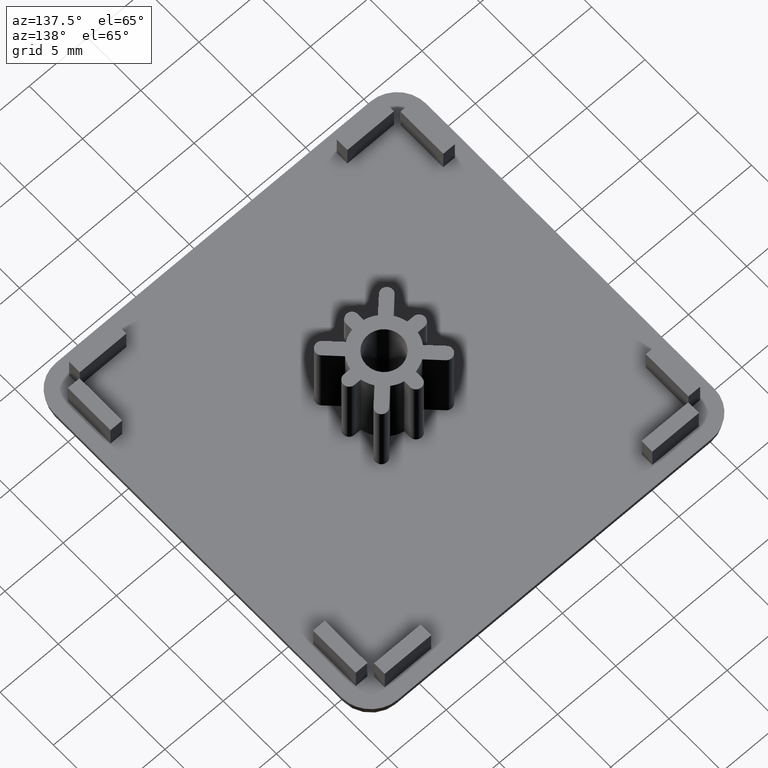
[diagram: clean part render]
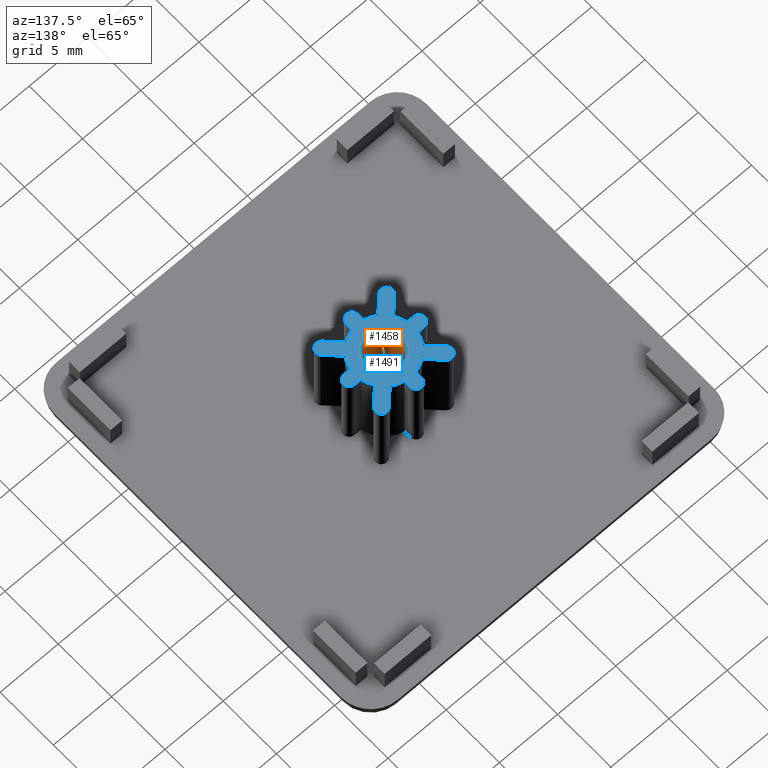
[diagram: same view with the hole feature highlighted: cylindrical wall and planar end face, labeled with their STEP entity ids]
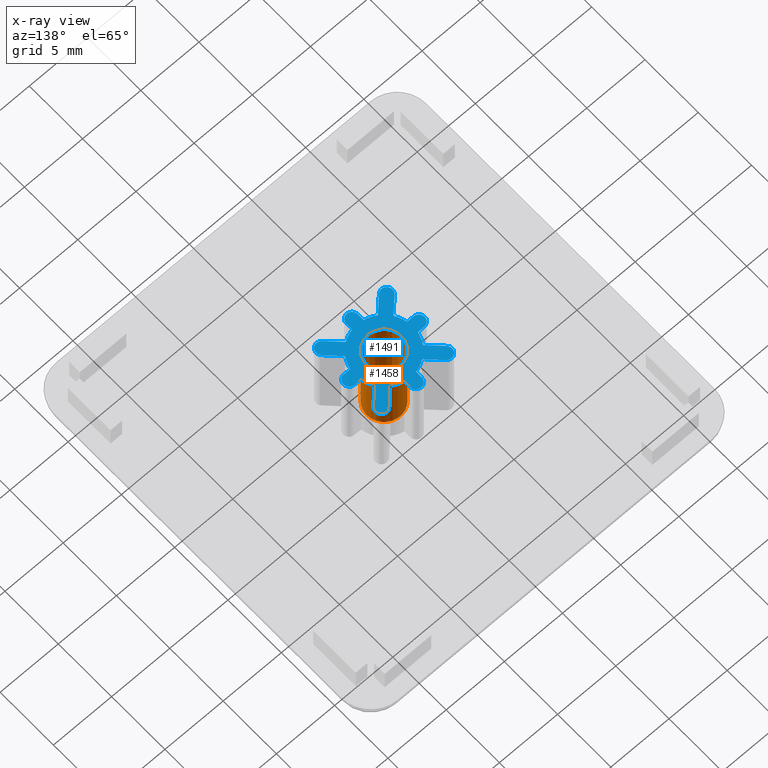
[diagram: x-ray of the same camera — body ghosted, the hole faces saturated]
A machine part, auxiliary view. The highlighted faces form one hole feature of diameter 3 mm: the cylindrical wall (entity #1458, orange) and its adjacent planar end face (entity #1491, blue) — they share a circular edge in the B-rep.
The next image is the same camera in x-ray (body ghosted, the hole faces saturated) — the bore reads through the body.
Wall:
#415=FACE_BOUND('',#512,.T.);
#426=FACE_OUTER_BOUND('',#511,.T.);
#511=EDGE_LOOP('',(#1009));
#512=EDGE_LOOP('',(#1010));
#607=CIRCLE('',#1546,1.5);
#608=CIRCLE('',#1547,1.5);
#653=VERTEX_POINT('',#2110);
#654=VERTEX_POINT('',#2112);
#795=EDGE_CURVE('',#653,#653,#607,.T.);
#796=EDGE_CURVE('',#654,#654,#608,.T.);
#1009=ORIENTED_EDGE('',*,*,#795,.F.);
#1010=ORIENTED_EDGE('',*,*,#796,.F.);
#1437=CYLINDRICAL_SURFACE('',#1545,1.5);
#1458=ADVANCED_FACE('',(#426,#415),#1437,.F.);
#1545=AXIS2_PLACEMENT_3D('',#2109,#1678,#1679);
#1546=AXIS2_PLACEMENT_3D('',#2111,#1680,#1681);
#1547=AXIS2_PLACEMENT_3D('',#2113,#1682,#1683);
#1678=DIRECTION('center_axis',(0.,0.,1.));
#1679=DIRECTION('ref_axis',(-1.,0.,0.));
#1680=DIRECTION('center_axis',(0.,0.,-1.));
#1681=DIRECTION('ref_axis',(-1.,0.,0.));
#1682=DIRECTION('center_axis',(0.,0.,1.));
#1683=DIRECTION('ref_axis',(-1.,0.,0.));
#2109=CARTESIAN_POINT('Origin',(-10.6990287283671,2.50485419712414,2.5));
#2110=CARTESIAN_POINT('',(-9.19902872836705,2.50485419712414,10.));
#2111=CARTESIAN_POINT('Origin',(-10.6990287283671,2.50485419712414,10.));
#2112=CARTESIAN_POINT('',(-9.19902872836705,2.50485419712414,2.5));
#2113=CARTESIAN_POINT('Origin',(-10.6990287283671,2.50485419712414,2.5));
End face:
#35=PLANE('',#1612);
#81=LINE('',#2125,#249);
#85=LINE('',#2137,#253);
#89=LINE('',#2149,#257);
#93=LINE('',#2161,#261);
#97=LINE('',#2173,#265);
#101=LINE('',#2185,#269);
#105=LINE('',#2197,#273);
#109=LINE('',#2209,#277);
#113=LINE('',#2221,#281);
#117=LINE('',#2233,#285);
#121=LINE('',#2245,#289);
#125=LINE('',#2257,#293);
#129=LINE('',#2269,#297);
#133=LINE('',#2281,#301);
#137=LINE('',#2293,#305);
#141=LINE('',#2304,#309);
#249=VECTOR('',#1694,1.50025772552267);
#253=VECTOR('',#1706,1.50025772552267);
#257=VECTOR('',#1718,0.550510257216825);
#261=VECTOR('',#1730,0.550510257216826);
#265=VECTOR('',#1742,1.50025772552267);
#269=VECTOR('',#1754,1.50025772552269);
#273=VECTOR('',#1766,0.55051025721682);
#277=VECTOR('',#1778,0.550510257216824);
#281=VECTOR('',#1790,1.50025772552266);
#285=VECTOR('',#1802,1.50025772552267);
#289=VECTOR('',#1814,0.550510257216821);
#293=VECTOR('',#1826,0.550510257216825);
#297=VECTOR('',#1838,1.50025772552262);
#301=VECTOR('',#1850,1.50025772552262);
#305=VECTOR('',#1862,0.55051025721682);
#309=VECTOR('',#1874,0.550510257216824);
#416=FACE_BOUND('',#546,.T.);
#459=FACE_OUTER_BOUND('',#545,.T.);
#545=EDGE_LOOP('',(#1139,#1140,#1141,#1142,#1143,#1144,#1145,#1146,#1147,
#1148,#1149,#1150,#1151,#1152,#1153,#1154,#1155,#1156,#1157,#1158,#1159,
#1160,#1161,#1162,#1163,#1164,#1165,#1166,#1167,#1168,#1169,#1170));
#546=EDGE_LOOP('',(#1171));
#607=CIRCLE('',#1546,1.5);
#609=CIRCLE('',#1549,2.5);
#611=CIRCLE('',#1553,0.499999999999998);
#613=CIRCLE('',#1557,2.5);
#615=CIRCLE('',#1561,0.500000000000001);
#617=CIRCLE('',#1565,2.5);
#619=CIRCLE('',#1569,0.499999999999997);
#621=CIRCLE('',#1573,2.5);
#623=CIRCLE('',#1577,0.500000000000003);
#625=CIRCLE('',#1581,2.5);
#627=CIRCLE('',#1585,0.499999999999998);
#629=CIRCLE('',#1589,2.5);
#631=CIRCLE('',#1593,0.499999999999999);
#633=CIRCLE('',#1597,2.5);
#635=CIRCLE('',#1601,0.499999999999994);
#637=CIRCLE('',#1605,2.5);
#639=CIRCLE('',#1609,0.500000000000002);
#653=VERTEX_POINT('',#2110);
#655=VERTEX_POINT('',#2115);
#656=VERTEX_POINT('',#2116);
#659=VERTEX_POINT('',#2124);
#661=VERTEX_POINT('',#2130);
#663=VERTEX_POINT('',#2136);
#665=VERTEX_POINT('',#2142);
#667=VERTEX_POINT('',#2148);
#669=VERTEX_POINT('',#2154);
#671=VERTEX_POINT('',#2160);
#673=VERTEX_POINT('',#2166);
#675=VERTEX_POINT('',#2172);
#677=VERTEX_POINT('',#2178);
#679=VERTEX_POINT('',#2184);
#681=VERTEX_POINT('',#2190);
#683=VERTEX_POINT('',#2196);
#685=VERTEX_POINT('',#2202);
#687=VERTEX_POINT('',#2208);
#689=VERTEX_POINT('',#2214);
#691=VERTEX_POINT('',#2220);
#693=VERTEX_POINT('',#2226);
#695=VERTEX_POINT('',#2232);
#697=VERTEX_POINT('',#2238);
#699=VERTEX_POINT('',#2244);
#701=VERTEX_POINT('',#2250);
#703=VERTEX_POINT('',#2256);
#705=VERTEX_POINT('',#2262);
#707=VERTEX_POINT('',#2268);
#709=VERTEX_POINT('',#2274);
#711=VERTEX_POINT('',#2280);
#713=VERTEX_POINT('',#2286);
#715=VERTEX_POINT('',#2292);
#717=VERTEX_POINT('',#2298);
#795=EDGE_CURVE('',#653,#653,#607,.T.);
#797=EDGE_CURVE('',#655,#656,#609,.T.);
#801=EDGE_CURVE('',#656,#659,#81,.T.);
#804=EDGE_CURVE('',#659,#661,#611,.T.);
#807=EDGE_CURVE('',#661,#663,#85,.T.);
#810=EDGE_CURVE('',#663,#665,#613,.T.);
#813=EDGE_CURVE('',#665,#667,#89,.T.);
#816=EDGE_CURVE('',#667,#669,#615,.T.);
#819=EDGE_CURVE('',#669,#671,#93,.T.);
#822=EDGE_CURVE('',#671,#673,#617,.T.);
#825=EDGE_CURVE('',#673,#675,#97,.T.);
#828=EDGE_CURVE('',#675,#677,#619,.T.);
#831=EDGE_CURVE('',#677,#679,#101,.T.);
#834=EDGE_CURVE('',#679,#681,#621,.T.);
#837=EDGE_CURVE('',#681,#683,#105,.T.);
#840=EDGE_CURVE('',#683,#685,#623,.T.);
#843=EDGE_CURVE('',#685,#687,#109,.T.);
#846=EDGE_CURVE('',#687,#689,#625,.T.);
#849=EDGE_CURVE('',#689,#691,#113,.T.);
#852=EDGE_CURVE('',#691,#693,#627,.T.);
#855=EDGE_CURVE('',#693,#695,#117,.T.);
#858=EDGE_CURVE('',#695,#697,#629,.T.);
#861=EDGE_CURVE('',#697,#699,#121,.T.);
#864=EDGE_CURVE('',#699,#701,#631,.T.);
#867=EDGE_CURVE('',#701,#703,#125,.T.);
#870=EDGE_CURVE('',#703,#705,#633,.T.);
#873=EDGE_CURVE('',#705,#707,#129,.T.);
#876=EDGE_CURVE('',#707,#709,#635,.T.);
#879=EDGE_CURVE('',#709,#711,#133,.T.);
#882=EDGE_CURVE('',#711,#713,#637,.T.);
#885=EDGE_CURVE('',#713,#715,#137,.T.);
#888=EDGE_CURVE('',#715,#717,#639,.T.);
#891=EDGE_CURVE('',#717,#655,#141,.T.);
#1139=ORIENTED_EDGE('',*,*,#797,.F.);
#1140=ORIENTED_EDGE('',*,*,#891,.F.);
#1141=ORIENTED_EDGE('',*,*,#888,.F.);
#1142=ORIENTED_EDGE('',*,*,#885,.F.);
#1143=ORIENTED_EDGE('',*,*,#882,.F.);
#1144=ORIENTED_EDGE('',*,*,#879,.F.);
#1145=ORIENTED_EDGE('',*,*,#876,.F.);
#1146=ORIENTED_EDGE('',*,*,#873,.F.);
#1147=ORIENTED_EDGE('',*,*,#870,.F.);
#1148=ORIENTED_EDGE('',*,*,#867,.F.);
#1149=ORIENTED_EDGE('',*,*,#864,.F.);
#1150=ORIENTED_EDGE('',*,*,#861,.F.);
#1151=ORIENTED_EDGE('',*,*,#858,.F.);
#1152=ORIENTED_EDGE('',*,*,#855,.F.);
#1153=ORIENTED_EDGE('',*,*,#852,.F.);
#1154=ORIENTED_EDGE('',*,*,#849,.F.);
#1155=ORIENTED_EDGE('',*,*,#846,.F.);
#1156=ORIENTED_EDGE('',*,*,#843,.F.);
#1157=ORIENTED_EDGE('',*,*,#840,.F.);
#1158=ORIENTED_EDGE('',*,*,#837,.F.);
#1159=ORIENTED_EDGE('',*,*,#834,.F.);
#1160=ORIENTED_EDGE('',*,*,#831,.F.);
#1161=ORIENTED_EDGE('',*,*,#828,.F.);
#1162=ORIENTED_EDGE('',*,*,#825,.F.);
#1163=ORIENTED_EDGE('',*,*,#822,.F.);
#1164=ORIENTED_EDGE('',*,*,#819,.F.);
#1165=ORIENTED_EDGE('',*,*,#816,.F.);
#1166=ORIENTED_EDGE('',*,*,#813,.F.);
#1167=ORIENTED_EDGE('',*,*,#810,.F.);
#1168=ORIENTED_EDGE('',*,*,#807,.F.);
#1169=ORIENTED_EDGE('',*,*,#804,.F.);
#1170=ORIENTED_EDGE('',*,*,#801,.F.);
#1171=ORIENTED_EDGE('',*,*,#795,.T.);
#1491=ADVANCED_FACE('',(#459,#416),#35,.T.);
#1546=AXIS2_PLACEMENT_3D('',#2111,#1680,#1681);
#1549=AXIS2_PLACEMENT_3D('',#2117,#1686,#1687);
#1553=AXIS2_PLACEMENT_3D('',#2131,#1699,#1700);
#1557=AXIS2_PLACEMENT_3D('',#2143,#1711,#1712);
#1561=AXIS2_PLACEMENT_3D('',#2155,#1723,#1724);
#1565=AXIS2_PLACEMENT_3D('',#2167,#1735,#1736);
#1569=AXIS2_PLACEMENT_3D('',#2179,#1747,#1748);
#1573=AXIS2_PLACEMENT_3D('',#2191,#1759,#1760);
#1577=AXIS2_PLACEMENT_3D('',#2203,#1771,#1772);
#1581=AXIS2_PLACEMENT_3D('',#2215,#1783,#1784);
#1585=AXIS2_PLACEMENT_3D('',#2227,#1795,#1796);
#1589=AXIS2_PLACEMENT_3D('',#2239,#1807,#1808);
#1593=AXIS2_PLACEMENT_3D('',#2251,#1819,#1820);
#1597=AXIS2_PLACEMENT_3D('',#2263,#1831,#1832);
#1601=AXIS2_PLACEMENT_3D('',#2275,#1843,#1844);
#1605=AXIS2_PLACEMENT_3D('',#2287,#1855,#1856);
#1609=AXIS2_PLACEMENT_3D('',#2299,#1867,#1868);
#1612=AXIS2_PLACEMENT_3D('',#2306,#1876,#1877);
#1680=DIRECTION('center_axis',(0.,0.,-1.));
#1681=DIRECTION('ref_axis',(-1.,0.,0.));
#1686=DIRECTION('center_axis',(0.,0.,-1.));
#1687=DIRECTION('ref_axis',(0.551398966790239,0.834241679264862,0.));
#1694=DIRECTION('',(0.707106781186543,0.707106781186552,0.));
#1699=DIRECTION('center_axis',(0.,0.,-1.));
#1700=DIRECTION('ref_axis',(0.707106781186546,-0.707106781186549,0.));
#1706=DIRECTION('',(-0.707106781186546,-0.707106781186549,0.));
#1711=DIRECTION('center_axis',(0.,0.,-1.));
#1712=DIRECTION('ref_axis',(0.97979589711327,0.200000000000003,0.));
#1718=DIRECTION('',(1.,5.04179082074706E-15,0.));
#1723=DIRECTION('center_axis',(0.,0.,-1.));
#1724=DIRECTION('ref_axis',(6.6613381477509E-15,-1.,0.));
#1730=DIRECTION('',(-1.,2.01671632829882E-15,0.));
#1735=DIRECTION('center_axis',(0.,0.,-1.));
#1736=DIRECTION('ref_axis',(0.834241679264862,-0.551398966790239,0.));
#1742=DIRECTION('',(0.707106781186555,-0.70710678118654,0.));
#1747=DIRECTION('center_axis',(0.,0.,-1.));
#1748=DIRECTION('ref_axis',(-0.707106781186542,-0.707106781186553,0.));
#1754=DIRECTION('',(-0.707106781186555,0.70710678118654,0.));
#1759=DIRECTION('center_axis',(0.,0.,-1.));
#1760=DIRECTION('ref_axis',(0.200000000000003,-0.97979589711327,0.));
#1766=DIRECTION('',(4.03343265659768E-15,-1.,0.));
#1771=DIRECTION('center_axis',(0.,0.,-1.));
#1772=DIRECTION('ref_axis',(-1.,-4.99600361081318E-15,0.));
#1778=DIRECTION('',(-4.03343265659766E-15,1.,0.));
#1783=DIRECTION('center_axis',(0.,0.,-1.));
#1784=DIRECTION('ref_axis',(-0.551398966790239,-0.834241679264862,0.));
#1790=DIRECTION('',(-0.707106781186531,-0.707106781186564,0.));
#1795=DIRECTION('center_axis',(0.,0.,-1.));
#1796=DIRECTION('ref_axis',(-0.707106781186544,0.707106781186551,0.));
#1802=DIRECTION('',(0.70710678118655,0.707106781186545,0.));
#1807=DIRECTION('center_axis',(0.,0.,-1.));
#1808=DIRECTION('ref_axis',(-0.97979589711327,-0.200000000000003,0.));
#1814=DIRECTION('',(-1.,-1.00835816414942E-15,0.));
#1819=DIRECTION('center_axis',(0.,0.,-1.));
#1820=DIRECTION('ref_axis',(0.,1.,0.));
#1826=DIRECTION('',(1.,2.01671632829882E-15,0.));
#1831=DIRECTION('center_axis',(0.,0.,-1.));
#1832=DIRECTION('ref_axis',(-0.834241679264862,0.551398966790238,0.));
#1838=DIRECTION('',(-0.707106781186551,0.707106781186544,0.));
#1843=DIRECTION('center_axis',(0.,0.,-1.));
#1844=DIRECTION('ref_axis',(0.707106781186554,0.707106781186541,0.));
#1850=DIRECTION('',(0.707106781186548,-0.707106781186547,0.));
#1855=DIRECTION('center_axis',(0.,0.,-1.));
#1856=DIRECTION('ref_axis',(-0.200000000000003,0.97979589711327,0.));
#1862=DIRECTION('',(-4.03343265659769E-15,1.,0.));
#1867=DIRECTION('center_axis',(0.,0.,-1.));
#1868=DIRECTION('ref_axis',(1.,4.4408920985006E-15,0.));
#1874=DIRECTION('',(0.,-1.,0.));
#1876=DIRECTION('center_axis',(0.,0.,1.));
#1877=DIRECTION('ref_axis',(1.,0.,0.));
#2110=CARTESIAN_POINT('',(-9.19902872836705,2.50485419712414,10.));
#2111=CARTESIAN_POINT('Origin',(-10.6990287283671,2.50485419712414,10.));
#2115=CARTESIAN_POINT('',(-10.1990287283671,4.95434393990731,10.));
#2116=CARTESIAN_POINT('',(-9.32053131139146,4.59045839528629,10.));
#2117=CARTESIAN_POINT('Origin',(-10.6990287283671,2.50485419712414,10.));
#2124=CARTESIAN_POINT('',(-8.25968890014688,5.65130080653088,10.));
#2125=CARTESIAN_POINT('',(-8.25968890014688,5.65130080653088,10.));
#2130=CARTESIAN_POINT('',(-7.55258211896033,4.94419402534433,10.));
#2131=CARTESIAN_POINT('Origin',(-7.9061355095536,5.29774741593761,10.));
#2136=CARTESIAN_POINT('',(-8.61342453020491,3.88335161409975,10.));
#2137=CARTESIAN_POINT('',(-8.61342453020491,3.88335161409975,10.));
#2142=CARTESIAN_POINT('',(-8.24953898558388,3.00485419712414,10.));
#2143=CARTESIAN_POINT('Origin',(-10.6990287283671,2.50485419712414,10.));
#2148=CARTESIAN_POINT('',(-7.69902872836705,3.00485419712415,10.));
#2149=CARTESIAN_POINT('',(-7.69902872836705,3.00485419712415,10.));
#2154=CARTESIAN_POINT('',(-7.69902872836705,2.00485419712415,10.));
#2155=CARTESIAN_POINT('Origin',(-7.69902872836705,2.50485419712415,10.));
#2160=CARTESIAN_POINT('',(-8.24953898558388,2.00485419712415,10.));
#2161=CARTESIAN_POINT('',(-8.24953898558388,2.00485419712415,10.));
#2166=CARTESIAN_POINT('',(-8.6134245302049,1.12635678014854,10.));
#2167=CARTESIAN_POINT('Origin',(-10.6990287283671,2.50485419712414,10.));
#2172=CARTESIAN_POINT('',(-7.5525821189603,0.0655143689039595,10.));
#2173=CARTESIAN_POINT('',(-7.5525821189603,0.0655143689039595,10.));
#2178=CARTESIAN_POINT('',(-8.25968890014684,-0.641592412282595,10.));
#2179=CARTESIAN_POINT('Origin',(-7.90613550955357,-0.28803902168932,10.));
#2184=CARTESIAN_POINT('',(-9.32053131139145,0.419249998961992,10.));
#2185=CARTESIAN_POINT('',(-9.32053131139145,0.419249998961992,10.));
#2190=CARTESIAN_POINT('',(-10.199028728367,0.0553644543409559,10.));
#2191=CARTESIAN_POINT('Origin',(-10.6990287283671,2.50485419712414,10.));
#2196=CARTESIAN_POINT('',(-10.199028728367,-0.495145802875864,10.));
#2197=CARTESIAN_POINT('',(-10.199028728367,-0.495145802875864,10.));
#2202=CARTESIAN_POINT('',(-11.199028728367,-0.495145802875868,10.));
#2203=CARTESIAN_POINT('Origin',(-10.699028728367,-0.495145802875865,10.));
#2208=CARTESIAN_POINT('',(-11.199028728367,0.0553644543409565,10.));
#2209=CARTESIAN_POINT('',(-11.199028728367,0.0553644543409565,10.));
#2214=CARTESIAN_POINT('',(-12.0775261453427,0.419249998961977,10.));
#2215=CARTESIAN_POINT('Origin',(-10.6990287283671,2.50485419712414,10.));
#2220=CARTESIAN_POINT('',(-13.1383685565872,-0.641592412282627,10.));
#2221=CARTESIAN_POINT('',(-13.1383685565872,-0.641592412282627,10.));
#2226=CARTESIAN_POINT('',(-13.8454753377738,0.0655143689039411,10.));
#2227=CARTESIAN_POINT('Origin',(-13.4919219471805,-0.288039021689333,10.));
#2232=CARTESIAN_POINT('',(-12.7846329265292,1.12635678014852,10.));
#2233=CARTESIAN_POINT('',(-12.7846329265292,1.12635678014852,10.));
#2238=CARTESIAN_POINT('',(-13.1485184711502,2.00485419712413,10.));
#2239=CARTESIAN_POINT('Origin',(-10.6990287283671,2.50485419712414,10.));
#2244=CARTESIAN_POINT('',(-13.6990287283671,2.00485419712413,10.));
#2245=CARTESIAN_POINT('',(-13.6990287283671,2.00485419712413,10.));
#2250=CARTESIAN_POINT('',(-13.6990287283671,3.00485419712412,10.));
#2251=CARTESIAN_POINT('Origin',(-13.6990287283671,2.50485419712412,10.));
#2256=CARTESIAN_POINT('',(-13.1485184711502,3.00485419712412,10.));
#2257=CARTESIAN_POINT('',(-13.1485184711502,3.00485419712412,10.));
#2262=CARTESIAN_POINT('',(-12.7846329265292,3.88335161409973,10.));
#2263=CARTESIAN_POINT('Origin',(-10.6990287283671,2.50485419712414,10.));
#2268=CARTESIAN_POINT('',(-13.8454753377738,4.94419402534428,10.));
#2269=CARTESIAN_POINT('',(-13.8454753377738,4.94419402534428,10.));
#2274=CARTESIAN_POINT('',(-13.1383685565872,5.65130080653083,10.));
#2275=CARTESIAN_POINT('Origin',(-13.4919219471805,5.29774741593756,10.));
#2280=CARTESIAN_POINT('',(-12.0775261453427,4.59045839528628,10.));
#2281=CARTESIAN_POINT('',(-12.0775261453427,4.59045839528628,10.));
#2286=CARTESIAN_POINT('',(-11.1990287283671,4.95434393990732,10.));
#2287=CARTESIAN_POINT('Origin',(-10.6990287283671,2.50485419712414,10.));
#2292=CARTESIAN_POINT('',(-11.1990287283671,5.50485419712413,10.));
#2293=CARTESIAN_POINT('',(-11.1990287283671,5.50485419712413,10.));
#2298=CARTESIAN_POINT('',(-10.1990287283671,5.50485419712414,10.));
#2299=CARTESIAN_POINT('Origin',(-10.6990287283671,5.50485419712414,10.));
#2304=CARTESIAN_POINT('',(-10.1990287283671,4.95434393990731,10.));
#2306=CARTESIAN_POINT('Origin',(-10.699028728367,2.50485419712412,10.));